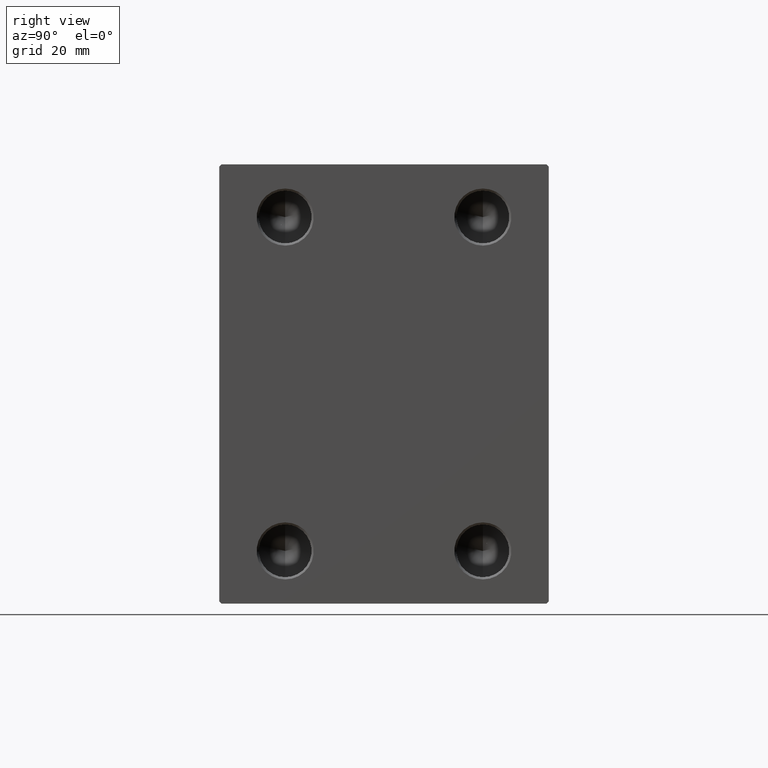
[diagram: clean part render]
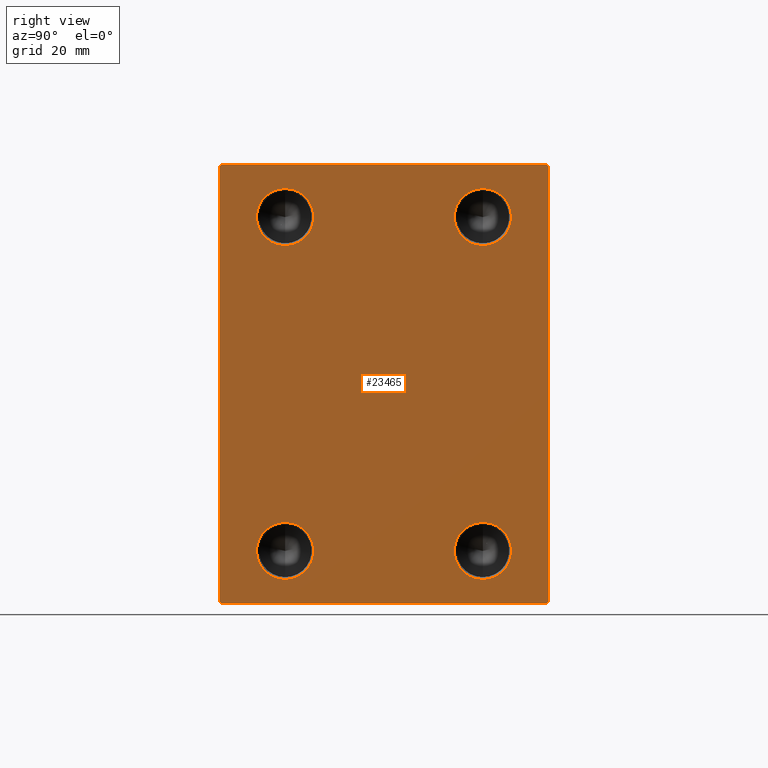
[diagram: same view with one face highlighted and labeled with its STEP entity id]
A machine part, right view. The second image highlights one B-rep face of the part: STEP entity #23465.
In plain terms, the highlighted planar face has unit normal (1, 0, 0).
Its self-contained STEP definition (entity closure, byte-faithful):
#57 = EDGE_CURVE ( 'NONE', #28851, #12740, #33507, .T. ) ;
#328 = EDGE_CURVE ( 'NONE', #21814, #5529, #8021, .T. ) ;
#1427 = DIRECTION ( 'NONE',  ( 1.000000000000000000, -0.000000000000000000, -0.000000000000000000 ) ) ;
#1469 = LINE ( 'NONE', #15178, #29933 ) ;
#2400 = ORIENTED_EDGE ( 'NONE', *, *, #14131, .F. ) ;
#2971 = CARTESIAN_POINT ( 'NONE',  ( 98.00000000000000000, 22.50000000000000000, 37.99999999999999289 ) ) ;
#3344 = CARTESIAN_POINT ( 'NONE',  ( 98.00000000000000000, -22.50000000000000000, 37.99999999999999289 ) ) ;
#3675 = EDGE_LOOP ( 'NONE', ( #26696, #43327, #40947, #11043, #21378, #17664, #13719, #32958 ) ) ;
#4233 = VERTEX_POINT ( 'NONE', #31598 ) ;
#4437 = EDGE_CURVE ( 'NONE', #5451, #4233, #22117, .T. ) ;
#4575 = VECTOR ( 'NONE', #39968, 999.9999999999998863 ) ;
#4850 = EDGE_LOOP ( 'NONE', ( #10785, #27628 ) ) ;
#5113 = CARTESIAN_POINT ( 'NONE',  ( 98.00000000000000000, 43.49999999999974420, -43.50000000000034817 ) ) ;
#5193 = VECTOR ( 'NONE', #40910, 1000.000000000000000 ) ;
#5248 = DIRECTION ( 'NONE',  ( 0.000000000000000000, 0.000000000000000000, -1.000000000000000000 ) ) ;
#5322 = AXIS2_PLACEMENT_3D ( 'NONE', #14059, #35205, #17889 ) ;
#5451 = VERTEX_POINT ( 'NONE', #41709 ) ;
#5529 = VERTEX_POINT ( 'NONE', #38988 ) ;
#6404 = CARTESIAN_POINT ( 'NONE',  ( 98.00000000000000000, -37.50000000000000000, 49.49999999999998579 ) ) ;
#6434 = FACE_OUTER_BOUND ( 'NONE', #3675, .T. ) ;
#8021 = LINE ( 'NONE', #5113, #41495 ) ;
#8290 = DIRECTION ( 'NONE',  ( 1.000000000000000000, -0.000000000000000000, -0.000000000000000000 ) ) ;
#8970 = DIRECTION ( 'NONE',  ( 0.000000000000000000, 0.000000000000000000, -1.000000000000000000 ) ) ;
#9361 = CARTESIAN_POINT ( 'NONE',  ( 98.00000000000000000, -36.99999999999999289, 49.99999999999998579 ) ) ;
#9889 = EDGE_CURVE ( 'NONE', #30012, #29301, #27281, .T. ) ;
#10449 = DIRECTION ( 'NONE',  ( 1.000000000000000000, 0.000000000000000000, 0.000000000000000000 ) ) ;
#10553 = AXIS2_PLACEMENT_3D ( 'NONE', #2971, #12642, #26377 ) ;
#10785 = ORIENTED_EDGE ( 'NONE', *, *, #27651, .F. ) ;
#11043 = ORIENTED_EDGE ( 'NONE', *, *, #38806, .T. ) ;
#11225 = VERTEX_POINT ( 'NONE', #9361 ) ;
#11753 = DIRECTION ( 'NONE',  ( 0.000000000000000000, -1.387778780781445676E-16, 1.000000000000000000 ) ) ;
#11779 = VECTOR ( 'NONE', #11753, 1000.000000000000000 ) ;
#11845 = AXIS2_PLACEMENT_3D ( 'NONE', #3344, #21108, #17725 ) ;
#12642 = DIRECTION ( 'NONE',  ( 1.000000000000000000, -0.000000000000000000, -0.000000000000000000 ) ) ;
#12740 = VERTEX_POINT ( 'NONE', #17286 ) ;
#13045 = CARTESIAN_POINT ( 'NONE',  ( 98.00000000000000000, 22.50000000000000000, 31.50000000000000000 ) ) ;
#13719 = ORIENTED_EDGE ( 'NONE', *, *, #15396, .T. ) ;
#14059 = CARTESIAN_POINT ( 'NONE',  ( 98.00000000000000000, -22.50000000000000000, -38.00000000000000711 ) ) ;
#14131 = EDGE_CURVE ( 'NONE', #4233, #5451, #24692, .T. ) ;
#14840 = EDGE_CURVE ( 'NONE', #11225, #37731, #22663, .T. ) ;
#15178 = CARTESIAN_POINT ( 'NONE',  ( 98.00000000000000000, -37.50000000000000000, -50.00000000000000000 ) ) ;
#15396 = EDGE_CURVE ( 'NONE', #5529, #26025, #36489, .T. ) ;
#16467 = CARTESIAN_POINT ( 'NONE',  ( 98.00000000000000000, -37.50000000000000000, -49.49999999999997158 ) ) ;
#16545 = CARTESIAN_POINT ( 'NONE',  ( 98.00000000000000000, 0.000000000000000000, 0.000000000000000000 ) ) ;
#17147 = CARTESIAN_POINT ( 'NONE',  ( 98.00000000000000000, 37.00000000000001421, -50.00000000000000000 ) ) ;
#17286 = CARTESIAN_POINT ( 'NONE',  ( 98.00000000000000000, 22.50000000000000000, 44.49999999999998579 ) ) ;
#17291 = CARTESIAN_POINT ( 'NONE',  ( 98.00000000000000000, 37.49999999999999289, 50.00000000000000711 ) ) ;
#17664 = ORIENTED_EDGE ( 'NONE', *, *, #328, .T. ) ;
#17725 = DIRECTION ( 'NONE',  ( 0.000000000000000000, 0.000000000000000000, -1.000000000000000000 ) ) ;
#17889 = DIRECTION ( 'NONE',  ( 0.000000000000000000, 0.000000000000000000, -1.000000000000000000 ) ) ;
#18461 = CIRCLE ( 'NONE', #10553, 6.499999999999992006 ) ;
#18488 = EDGE_CURVE ( 'NONE', #33378, #35220, #39850, .T. ) ;
#18514 = AXIS2_PLACEMENT_3D ( 'NONE', #21357, #26296, #8970 ) ;
#19225 = ORIENTED_EDGE ( 'NONE', *, *, #18488, .F. ) ;
#20148 = DIRECTION ( 'NONE',  ( 0.000000000000000000, 0.000000000000000000, -1.000000000000000000 ) ) ;
#20156 = AXIS2_PLACEMENT_3D ( 'NONE', #42574, #1427, #5248 ) ;
#20308 = CARTESIAN_POINT ( 'NONE',  ( 98.00000000000000000, -22.50000000000000000, -38.00000000000000711 ) ) ;
#20365 = FACE_BOUND ( 'NONE', #31675, .T. ) ;
#21108 = DIRECTION ( 'NONE',  ( 1.000000000000000000, -0.000000000000000000, -0.000000000000000000 ) ) ;
#21357 = CARTESIAN_POINT ( 'NONE',  ( 98.00000000000000000, 22.50000000000000000, 37.99999999999999289 ) ) ;
#21378 = ORIENTED_EDGE ( 'NONE', *, *, #26536, .T. ) ;
#21614 = VECTOR ( 'NONE', #27988, 1000.000000000000114 ) ;
#21682 = LINE ( 'NONE', #28652, #21614 ) ;
#21749 = EDGE_CURVE ( 'NONE', #26025, #44033, #39215, .T. ) ;
#21814 = VERTEX_POINT ( 'NONE', #17147 ) ;
#22117 = CIRCLE ( 'NONE', #24257, 6.499999999999992006 ) ;
#22535 = ORIENTED_EDGE ( 'NONE', *, *, #4437, .F. ) ;
#22663 = LINE ( 'NONE', #36374, #4575 ) ;
#22793 = CARTESIAN_POINT ( 'NONE',  ( 98.00000000000000000, -37.00000000000000000, -50.00000000000000000 ) ) ;
#23275 = DIRECTION ( 'NONE',  ( 1.000000000000000000, -0.000000000000000000, -0.000000000000000000 ) ) ;
#23465 = ADVANCED_FACE ( 'NONE', ( #34304, #23957, #37892, #20365, #6434 ), #37232, .T. ) ;
#23957 = FACE_BOUND ( 'NONE', #31718, .T. ) ;
#24022 = VERTEX_POINT ( 'NONE', #16467 ) ;
#24257 = AXIS2_PLACEMENT_3D ( 'NONE', #20308, #38061, #44352 ) ;
#24592 = VERTEX_POINT ( 'NONE', #22793 ) ;
#24692 = CIRCLE ( 'NONE', #5322, 6.499999999999992006 ) ;
#25142 = ORIENTED_EDGE ( 'NONE', *, *, #37998, .F. ) ;
#25709 = CARTESIAN_POINT ( 'NONE',  ( 98.00000000000000000, 37.50000000000000711, -50.00000000000000000 ) ) ;
#26025 = VERTEX_POINT ( 'NONE', #39996 ) ;
#26296 = DIRECTION ( 'NONE',  ( 1.000000000000000000, -0.000000000000000000, -0.000000000000000000 ) ) ;
#26377 = DIRECTION ( 'NONE',  ( 0.000000000000000000, 0.000000000000000000, -1.000000000000000000 ) ) ;
#26536 = EDGE_CURVE ( 'NONE', #24592, #21814, #1469, .T. ) ;
#26696 = ORIENTED_EDGE ( 'NONE', *, *, #43482, .T. ) ;
#27281 = CIRCLE ( 'NONE', #41765, 6.499999999999992006 ) ;
#27582 = CARTESIAN_POINT ( 'NONE',  ( 98.00000000000000000, 22.50000000000000000, -31.50000000000001421 ) ) ;
#27628 = ORIENTED_EDGE ( 'NONE', *, *, #57, .F. ) ;
#27651 = EDGE_CURVE ( 'NONE', #12740, #28851, #18461, .T. ) ;
#27988 = DIRECTION ( 'NONE',  ( -0.000000000000000000, 0.7071067811865474617, -0.7071067811865474617 ) ) ;
#28433 = DIRECTION ( 'NONE',  ( -0.000000000000000000, -0.7071067811865525687, 0.7071067811865425767 ) ) ;
#28652 = CARTESIAN_POINT ( 'NONE',  ( 98.00000000000000000, -43.50000000000000711, -43.50000000000000711 ) ) ;
#28851 = VERTEX_POINT ( 'NONE', #13045 ) ;
#28905 = DIRECTION ( 'NONE',  ( 0.000000000000000000, 1.000000000000000000, 0.000000000000000000 ) ) ;
#29015 = CARTESIAN_POINT ( 'NONE',  ( 98.00000000000000000, -37.50000000000000000, 49.99999999999998579 ) ) ;
#29301 = VERTEX_POINT ( 'NONE', #27582 ) ;
#29933 = VECTOR ( 'NONE', #28905, 1000.000000000000000 ) ;
#30012 = VERTEX_POINT ( 'NONE', #32350 ) ;
#30454 = EDGE_CURVE ( 'NONE', #29301, #30012, #33619, .T. ) ;
#30576 = LINE ( 'NONE', #17291, #5193 ) ;
#30950 = CIRCLE ( 'NONE', #20156, 6.499999999999992006 ) ;
#31345 = VECTOR ( 'NONE', #28433, 999.9999999999998863 ) ;
#31436 = CARTESIAN_POINT ( 'NONE',  ( 98.00000000000000000, -22.50000000000000000, 31.50000000000000000 ) ) ;
#31598 = CARTESIAN_POINT ( 'NONE',  ( 98.00000000000000000, -22.50000000000000000, -31.50000000000001421 ) ) ;
#31675 = EDGE_LOOP ( 'NONE', ( #34897, #40025 ) ) ;
#31718 = EDGE_LOOP ( 'NONE', ( #25142, #19225 ) ) ;
#32350 = CARTESIAN_POINT ( 'NONE',  ( 98.00000000000000000, 22.50000000000000000, -44.50000000000000000 ) ) ;
#32386 = LINE ( 'NONE', #29015, #43024 ) ;
#32682 = CARTESIAN_POINT ( 'NONE',  ( 98.00000000000000000, 37.00000000000000711, 50.00000000000000711 ) ) ;
#32958 = ORIENTED_EDGE ( 'NONE', *, *, #21749, .T. ) ;
#33378 = VERTEX_POINT ( 'NONE', #31436 ) ;
#33507 = CIRCLE ( 'NONE', #18514, 6.499999999999992006 ) ;
#33619 = CIRCLE ( 'NONE', #35067, 6.499999999999992006 ) ;
#34117 = EDGE_CURVE ( 'NONE', #37731, #24022, #32386, .T. ) ;
#34304 = FACE_BOUND ( 'NONE', #4850, .T. ) ;
#34897 = ORIENTED_EDGE ( 'NONE', *, *, #30454, .F. ) ;
#35027 = CARTESIAN_POINT ( 'NONE',  ( 98.00000000000000000, -22.50000000000000000, 44.49999999999998579 ) ) ;
#35067 = AXIS2_PLACEMENT_3D ( 'NONE', #37209, #23275, #41026 ) ;
#35205 = DIRECTION ( 'NONE',  ( 1.000000000000000000, -0.000000000000000000, -0.000000000000000000 ) ) ;
#35220 = VERTEX_POINT ( 'NONE', #35027 ) ;
#36374 = CARTESIAN_POINT ( 'NONE',  ( 98.00000000000000000, -43.49999999999972999, 43.50000000000034106 ) ) ;
#36399 = CARTESIAN_POINT ( 'NONE',  ( 98.00000000000000000, 22.50000000000000000, -38.00000000000000711 ) ) ;
#36489 = LINE ( 'NONE', #25709, #11779 ) ;
#37209 = CARTESIAN_POINT ( 'NONE',  ( 98.00000000000000000, 22.50000000000000000, -38.00000000000000711 ) ) ;
#37232 = PLANE ( 'NONE',  #42151 ) ;
#37731 = VERTEX_POINT ( 'NONE', #6404 ) ;
#37892 = FACE_BOUND ( 'NONE', #41521, .T. ) ;
#37998 = EDGE_CURVE ( 'NONE', #35220, #33378, #30950, .T. ) ;
#38061 = DIRECTION ( 'NONE',  ( 1.000000000000000000, -0.000000000000000000, -0.000000000000000000 ) ) ;
#38806 = EDGE_CURVE ( 'NONE', #24022, #24592, #21682, .T. ) ;
#38988 = CARTESIAN_POINT ( 'NONE',  ( 98.00000000000000000, 37.50000000000000711, -49.50000000000001421 ) ) ;
#39104 = DIRECTION ( 'NONE',  ( 0.000000000000000000, 0.000000000000000000, -1.000000000000000000 ) ) ;
#39215 = LINE ( 'NONE', #42815, #31345 ) ;
#39850 = CIRCLE ( 'NONE', #11845, 6.499999999999992006 ) ;
#39968 = DIRECTION ( 'NONE',  ( 0.000000000000000000, -0.7071067811865525687, -0.7071067811865425767 ) ) ;
#39996 = CARTESIAN_POINT ( 'NONE',  ( 98.00000000000000000, 37.49999999999999289, 49.50000000000002842 ) ) ;
#40025 = ORIENTED_EDGE ( 'NONE', *, *, #9889, .F. ) ;
#40910 = DIRECTION ( 'NONE',  ( 0.000000000000000000, -1.000000000000000000, -2.775557561562891844E-16 ) ) ;
#40947 = ORIENTED_EDGE ( 'NONE', *, *, #34117, .T. ) ;
#41026 = DIRECTION ( 'NONE',  ( 0.000000000000000000, 0.000000000000000000, -1.000000000000000000 ) ) ;
#41495 = VECTOR ( 'NONE', #43100, 1000.000000000000000 ) ;
#41521 = EDGE_LOOP ( 'NONE', ( #2400, #22535 ) ) ;
#41709 = CARTESIAN_POINT ( 'NONE',  ( 98.00000000000000000, -22.50000000000000000, -44.50000000000000000 ) ) ;
#41765 = AXIS2_PLACEMENT_3D ( 'NONE', #36399, #8290, #39104 ) ;
#42151 = AXIS2_PLACEMENT_3D ( 'NONE', #16545, #10449, #20148 ) ;
#42574 = CARTESIAN_POINT ( 'NONE',  ( 98.00000000000000000, -22.50000000000000000, 37.99999999999999289 ) ) ;
#42724 = DIRECTION ( 'NONE',  ( 0.000000000000000000, 0.000000000000000000, -1.000000000000000000 ) ) ;
#42815 = CARTESIAN_POINT ( 'NONE',  ( 98.00000000000000000, 43.49999999999974420, 43.50000000000035527 ) ) ;
#43024 = VECTOR ( 'NONE', #42724, 1000.000000000000000 ) ;
#43100 = DIRECTION ( 'NONE',  ( -0.000000000000000000, 0.7071067811865524577, 0.7071067811865426878 ) ) ;
#43327 = ORIENTED_EDGE ( 'NONE', *, *, #14840, .T. ) ;
#43482 = EDGE_CURVE ( 'NONE', #44033, #11225, #30576, .T. ) ;
#44033 = VERTEX_POINT ( 'NONE', #32682 ) ;
#44352 = DIRECTION ( 'NONE',  ( 0.000000000000000000, 0.000000000000000000, -1.000000000000000000 ) ) ;